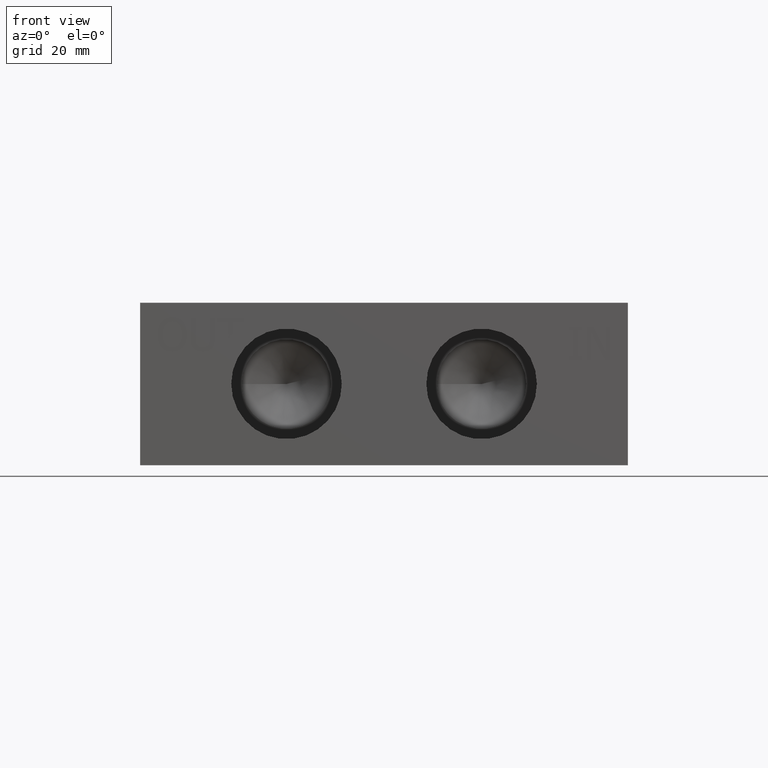
[diagram: clean part render]
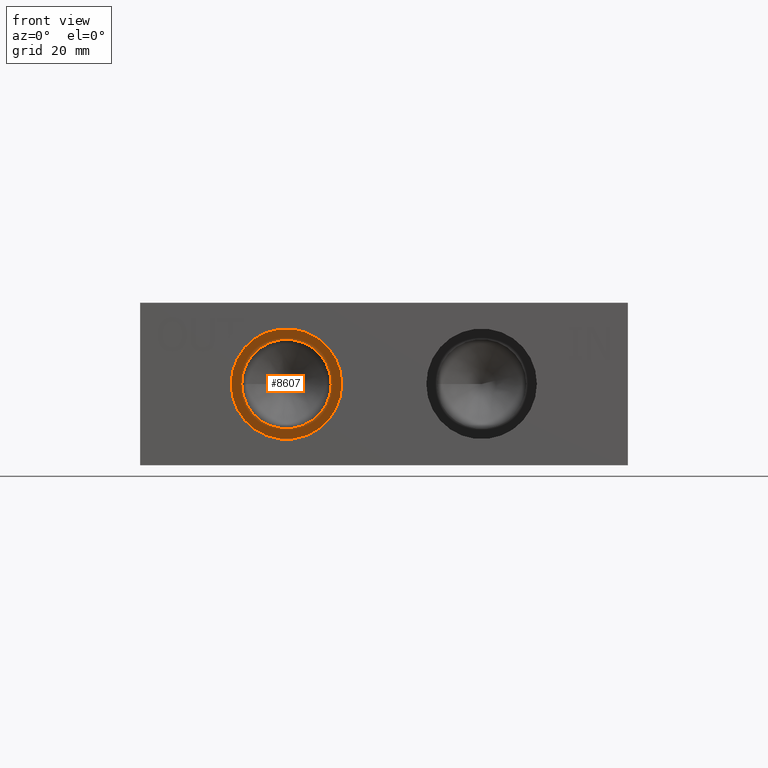
[diagram: same view with one face highlighted and labeled with its STEP entity id]
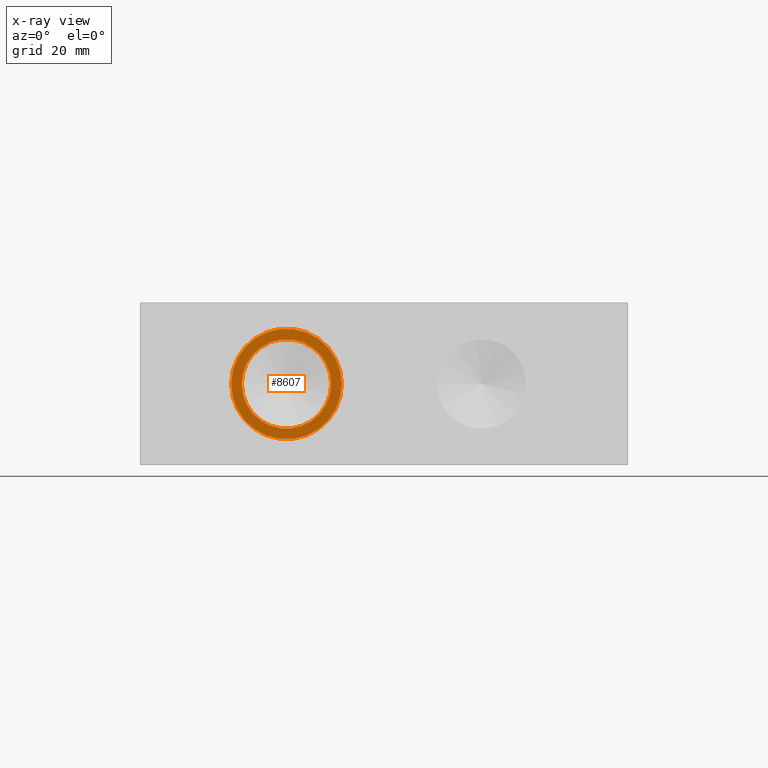
[diagram: x-ray of the same camera — body ghosted, the highlighted face saturated]
A machine part, front view. The second image highlights one B-rep face of the part: STEP entity #8607.
The next image is the same camera in x-ray: the body ghosted, the highlighted face saturated — about 0% of this face is hidden behind the body in this view.
In plain terms, the highlighted planar face has unit normal (0, -1, 0).
Its self-contained STEP definition (entity closure, byte-faithful):
#60=CIRCLE('',#8937,10.795);
#61=CIRCLE('',#8938,10.795);
#62=CIRCLE('',#8939,8.7376);
#146=FACE_BOUND('',#1308,.T.);
#420=PLANE('',#8936);
#833=FACE_OUTER_BOUND('',#1307,.T.);
#1307=EDGE_LOOP('',(#7503,#7504));
#1308=EDGE_LOOP('',(#7505));
#4066=VERTEX_POINT('',#14654);
#4067=VERTEX_POINT('',#14655);
#4068=VERTEX_POINT('',#14658);
#5234=EDGE_CURVE('',#4066,#4067,#60,.T.);
#5235=EDGE_CURVE('',#4067,#4066,#61,.T.);
#5236=EDGE_CURVE('',#4068,#4068,#62,.T.);
#7503=ORIENTED_EDGE('',*,*,#5234,.T.);
#7504=ORIENTED_EDGE('',*,*,#5235,.T.);
#7505=ORIENTED_EDGE('',*,*,#5236,.F.);
#8607=ADVANCED_FACE('',(#833,#146),#420,.T.);
#8936=AXIS2_PLACEMENT_3D('',#14653,#10395,#10396);
#8937=AXIS2_PLACEMENT_3D('',#14656,#10397,#10398);
#8938=AXIS2_PLACEMENT_3D('',#14657,#10399,#10400);
#8939=AXIS2_PLACEMENT_3D('',#14659,#10401,#10402);
#10395=DIRECTION('center_axis',(0.,-1.,0.));
#10396=DIRECTION('ref_axis',(1.,0.,0.));
#10397=DIRECTION('center_axis',(0.,-1.,0.));
#10398=DIRECTION('ref_axis',(1.,0.,0.));
#10399=DIRECTION('center_axis',(0.,-1.,0.));
#10400=DIRECTION('ref_axis',(1.,0.,0.));
#10401=DIRECTION('center_axis',(0.,-1.,0.));
#10402=DIRECTION('ref_axis',(1.,0.,0.));
#14653=CARTESIAN_POINT('Origin',(28.575,15.367,15.875));
#14654=CARTESIAN_POINT('',(39.37,15.367,15.875));
#14655=CARTESIAN_POINT('',(17.78,15.367,15.875));
#14656=CARTESIAN_POINT('Origin',(28.575,15.367,15.875));
#14657=CARTESIAN_POINT('Origin',(28.575,15.367,15.875));
#14658=CARTESIAN_POINT('',(19.8374,15.367,15.875));
#14659=CARTESIAN_POINT('Origin',(28.575,15.367,15.875));